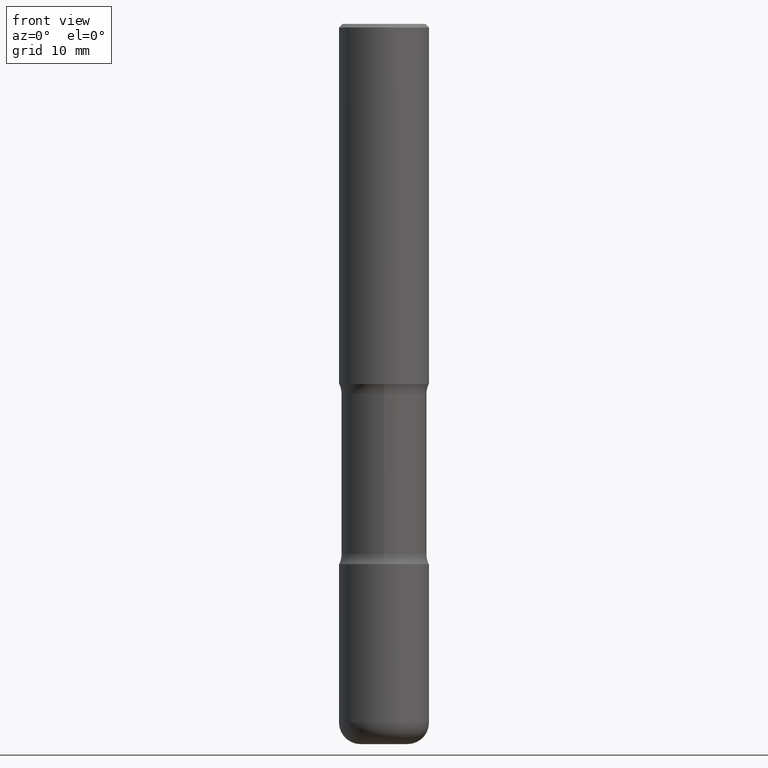
[diagram: clean part render]
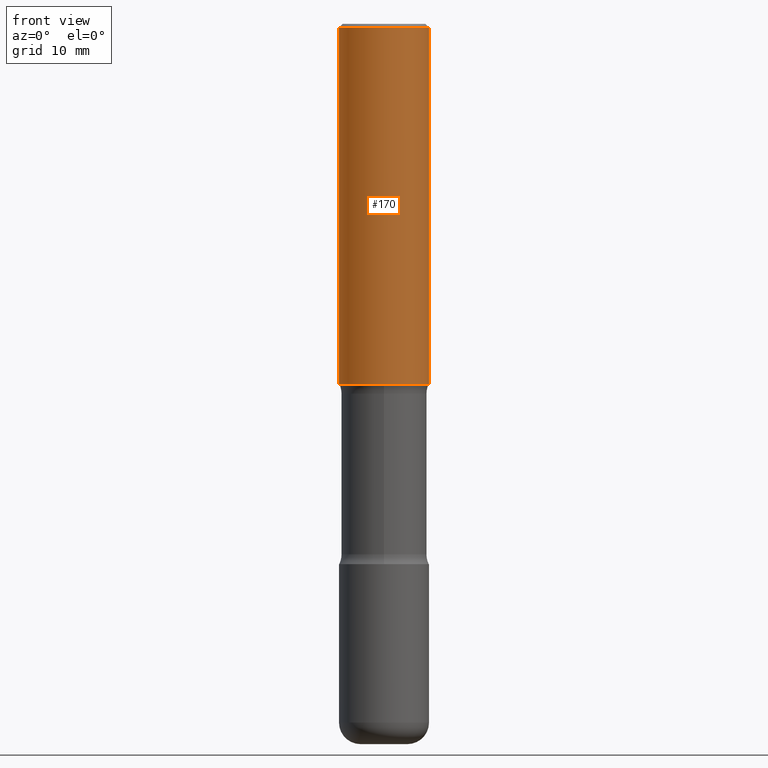
[diagram: same view with one face highlighted and labeled with its STEP entity id]
A machine part, front view. The second image highlights one B-rep face of the part: STEP entity #170.
In plain terms, the highlighted cylindrical surface (partial cylindrical patch) has radius 6.35 mm, axis along (-0, 0, 1).
Its self-contained STEP definition (entity closure, byte-faithful):
#14 = CARTESIAN_POINT ( 'NONE',  ( 0.2500000000000001665, -8.728703347107858632E-15, -2.000000000000000000 ) ) ;
#19 = CARTESIAN_POINT ( 'NONE',  ( -0.2500000000000000555, 1.776356839400250859E-15, -1.229733772563726866E-29 ) ) ;
#21 = ORIENTED_EDGE ( 'NONE', *, *, #177, .F. ) ;
#22 = DIRECTION ( 'NONE',  ( -2.445468806185136877E-29, 3.491481338843145188E-15, 1.000000000000000000 ) ) ;
#23 = CARTESIAN_POINT ( 'NONE',  ( 4.890937612370289799E-31, -6.982962677686315028E-17, -0.02000000000000006981 ) ) ;
#24 = EDGE_CURVE ( 'NONE', #425, #124, #273, .T. ) ;
#32 = CARTESIAN_POINT ( 'NONE',  ( -0.2499999999999999167, 1.675911042644703182E-15, -0.02000000000000006981 ) ) ;
#58 = EDGE_LOOP ( 'NONE', ( #380, #268, #556, #21 ) ) ;
#76 = DIRECTION ( 'NONE',  ( 1.000000000000000000, -6.982962677686265922E-15, 0.000000000000000000 ) ) ;
#79 = DIRECTION ( 'NONE',  ( -2.445468806185136597E-29, 3.491481338843145583E-15, 1.000000000000000000 ) ) ;
#109 = DIRECTION ( 'NONE',  ( 1.000000000000000000, -6.982962677686267499E-15, 0.000000000000000000 ) ) ;
#124 = VERTEX_POINT ( 'NONE', #32 ) ;
#146 = DIRECTION ( 'NONE',  ( 1.000000000000000000, -6.982962677686267499E-15, 4.876176775795935793E-29 ) ) ;
#166 = AXIS2_PLACEMENT_3D ( 'NONE', #168, #79, #76 ) ;
#168 = CARTESIAN_POINT ( 'NONE',  ( 4.890937612370273194E-29, -6.982962677686291165E-15, -2.000000000000000000 ) ) ;
#170 = ADVANCED_FACE ( 'NONE', ( #280 ), #327, .T. ) ;
#172 = CARTESIAN_POINT ( 'NONE',  ( 0.2500000000000000555, -1.745740669421567269E-15, 1.219044193948984228E-29 ) ) ;
#176 = DIRECTION ( 'NONE',  ( -2.445468806185136877E-29, 3.491481338843145188E-15, 1.000000000000000000 ) ) ;
#177 = EDGE_CURVE ( 'NONE', #124, #255, #220, .T. ) ;
#196 = EDGE_CURVE ( 'NONE', #425, #364, #198, .T. ) ;
#198 = CIRCLE ( 'NONE', #166, 0.2500000000000001665 ) ;
#220 = CIRCLE ( 'NONE', #293, 0.2499999999999999167 ) ;
#240 = AXIS2_PLACEMENT_3D ( 'NONE', #502, #448, #146 ) ;
#255 = VERTEX_POINT ( 'NONE', #513 ) ;
#268 = ORIENTED_EDGE ( 'NONE', *, *, #196, .T. ) ;
#273 = LINE ( 'NONE', #19, #547 ) ;
#280 = FACE_OUTER_BOUND ( 'NONE', #58, .T. ) ;
#293 = AXIS2_PLACEMENT_3D ( 'NONE', #23, #494, #109 ) ;
#327 = CYLINDRICAL_SURFACE ( 'NONE', #240, 0.2500000000000000555 ) ;
#357 = LINE ( 'NONE', #172, #496 ) ;
#364 = VERTEX_POINT ( 'NONE', #14 ) ;
#365 = EDGE_CURVE ( 'NONE', #364, #255, #357, .T. ) ;
#380 = ORIENTED_EDGE ( 'NONE', *, *, #24, .F. ) ;
#425 = VERTEX_POINT ( 'NONE', #436 ) ;
#436 = CARTESIAN_POINT ( 'NONE',  ( -0.2500000000000001665, -1.750039312831323809E-15, -2.000000000000000000 ) ) ;
#448 = DIRECTION ( 'NONE',  ( -2.445468806185136597E-29, 3.491481338843145583E-15, 1.000000000000000000 ) ) ;
#494 = DIRECTION ( 'NONE',  ( -2.445468806185136597E-29, 3.491481338843145583E-15, 1.000000000000000000 ) ) ;
#496 = VECTOR ( 'NONE', #176, 39.37007874015748143 ) ;
#502 = CARTESIAN_POINT ( 'NONE',  ( 0.000000000000000000, 0.000000000000000000, 0.000000000000000000 ) ) ;
#513 = CARTESIAN_POINT ( 'NONE',  ( 0.2499999999999999167, -1.784954126219745400E-15, -0.02000000000000006981 ) ) ;
#547 = VECTOR ( 'NONE', #22, 39.37007874015748143 ) ;
#556 = ORIENTED_EDGE ( 'NONE', *, *, #365, .T. ) ;